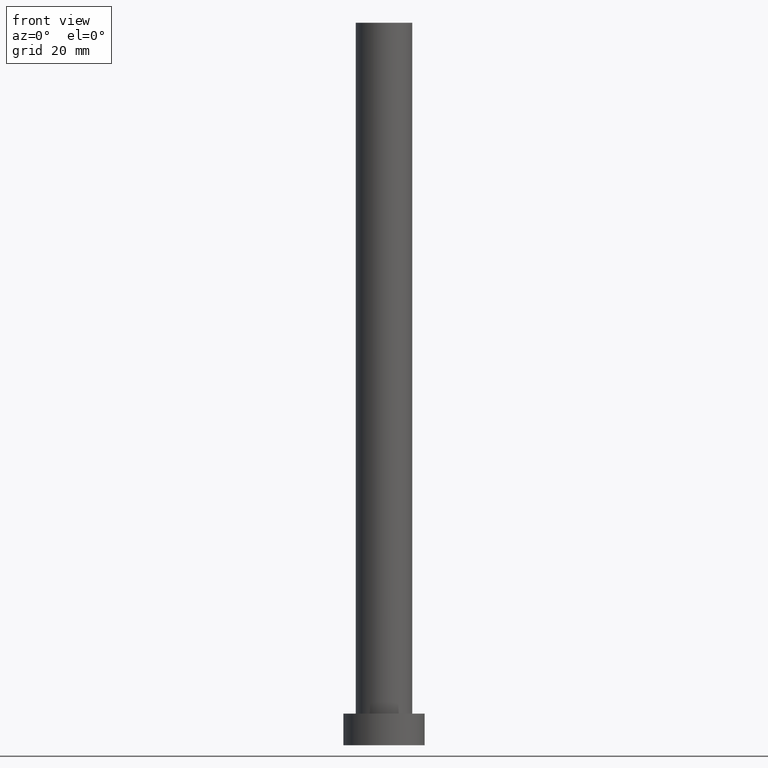
[diagram: clean part render]
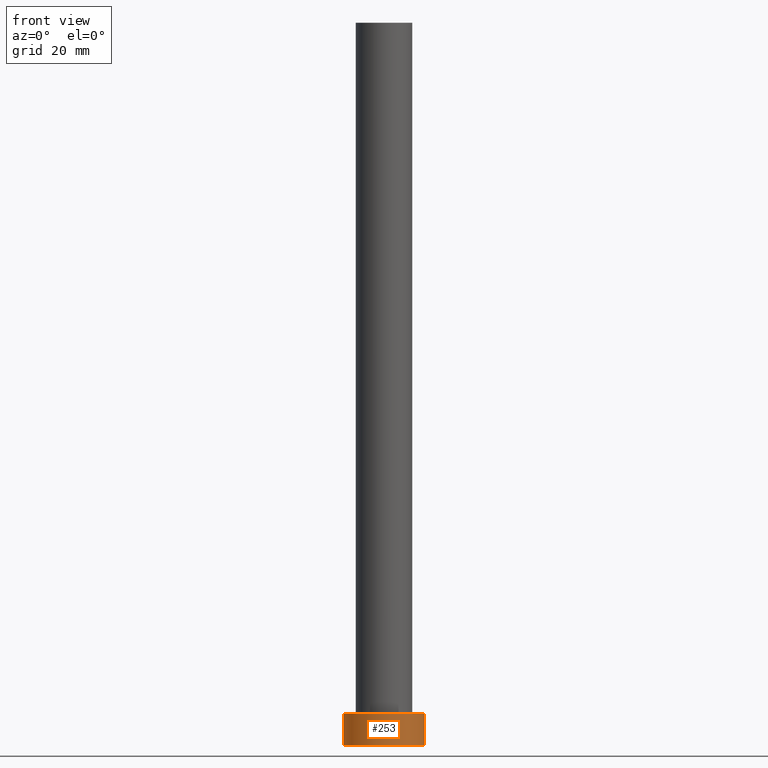
[diagram: same view with one face highlighted and labeled with its STEP entity id]
A machine part, front view. The second image highlights one B-rep face of the part: STEP entity #253.
In plain terms, the highlighted cylindrical surface (partial cylindrical patch) has radius 9 mm, axis along (-0, -0, -1).
Its self-contained STEP definition (entity closure, byte-faithful):
#2 = CARTESIAN_POINT ( 'NONE',  ( 0.000000000000000000, 0.000000000000000000, 7.000000000000000000 ) ) ;
#14 = CARTESIAN_POINT ( 'NONE',  ( -9.000000000000000000, 0.000000000000000000, 7.000000000000000000 ) ) ;
#35 = EDGE_CURVE ( 'NONE', #121, #222, #159, .T. ) ;
#41 = DIRECTION ( 'NONE',  ( -1.000000000000000000, 0.000000000000000000, 0.000000000000000000 ) ) ;
#44 = ORIENTED_EDGE ( 'NONE', *, *, #35, .F. ) ;
#66 = VECTOR ( 'NONE', #92, 1000.000000000000000 ) ;
#72 = DIRECTION ( 'NONE',  ( 1.000000000000000000, 0.000000000000000000, 0.000000000000000000 ) ) ;
#81 = CARTESIAN_POINT ( 'NONE',  ( 0.000000000000000000, 0.000000000000000000, 7.000000000000000000 ) ) ;
#82 = EDGE_LOOP ( 'NONE', ( #44, #179, #172, #240 ) ) ;
#86 = FACE_OUTER_BOUND ( 'NONE', #82, .T. ) ;
#92 = DIRECTION ( 'NONE',  ( -0.000000000000000000, -0.000000000000000000, -1.000000000000000000 ) ) ;
#98 = DIRECTION ( 'NONE',  ( 0.000000000000000000, 0.000000000000000000, 1.000000000000000000 ) ) ;
#100 = AXIS2_PLACEMENT_3D ( 'NONE', #212, #163, #153 ) ;
#117 = CARTESIAN_POINT ( 'NONE',  ( -9.000000000000000000, 0.000000000000000000, 7.000000000000000000 ) ) ;
#121 = VERTEX_POINT ( 'NONE', #231 ) ;
#125 = VERTEX_POINT ( 'NONE', #117 ) ;
#136 = CARTESIAN_POINT ( 'NONE',  ( 9.000000000000000000, 1.102182119232617714E-15, 0.000000000000000000 ) ) ;
#146 = AXIS2_PLACEMENT_3D ( 'NONE', #2, #98, #72 ) ;
#149 = CIRCLE ( 'NONE', #146, 9.000000000000000000 ) ;
#152 = DIRECTION ( 'NONE',  ( -0.000000000000000000, -0.000000000000000000, -1.000000000000000000 ) ) ;
#153 = DIRECTION ( 'NONE',  ( 1.000000000000000000, 0.000000000000000000, 0.000000000000000000 ) ) ;
#156 = DIRECTION ( 'NONE',  ( -0.000000000000000000, -0.000000000000000000, -1.000000000000000000 ) ) ;
#158 = EDGE_CURVE ( 'NONE', #125, #121, #149, .T. ) ;
#159 = LINE ( 'NONE', #171, #237 ) ;
#163 = DIRECTION ( 'NONE',  ( 0.000000000000000000, 0.000000000000000000, 1.000000000000000000 ) ) ;
#171 = CARTESIAN_POINT ( 'NONE',  ( 9.000000000000000000, 1.102182119232617714E-15, 7.000000000000000000 ) ) ;
#172 = ORIENTED_EDGE ( 'NONE', *, *, #186, .T. ) ;
#179 = ORIENTED_EDGE ( 'NONE', *, *, #158, .F. ) ;
#186 = EDGE_CURVE ( 'NONE', #125, #194, #192, .T. ) ;
#190 = CARTESIAN_POINT ( 'NONE',  ( -9.000000000000000000, 0.000000000000000000, 0.000000000000000000 ) ) ;
#192 = LINE ( 'NONE', #14, #66 ) ;
#194 = VERTEX_POINT ( 'NONE', #190 ) ;
#205 = EDGE_CURVE ( 'NONE', #194, #222, #211, .T. ) ;
#211 = CIRCLE ( 'NONE', #100, 9.000000000000000000 ) ;
#212 = CARTESIAN_POINT ( 'NONE',  ( 0.000000000000000000, 0.000000000000000000, 0.000000000000000000 ) ) ;
#222 = VERTEX_POINT ( 'NONE', #136 ) ;
#230 = AXIS2_PLACEMENT_3D ( 'NONE', #81, #156, #41 ) ;
#231 = CARTESIAN_POINT ( 'NONE',  ( 9.000000000000000000, 1.102182119232617714E-15, 7.000000000000000000 ) ) ;
#237 = VECTOR ( 'NONE', #152, 1000.000000000000000 ) ;
#240 = ORIENTED_EDGE ( 'NONE', *, *, #205, .T. ) ;
#244 = CYLINDRICAL_SURFACE ( 'NONE', #230, 9.000000000000000000 ) ;
#253 = ADVANCED_FACE ( 'NONE', ( #86 ), #244, .T. ) ;